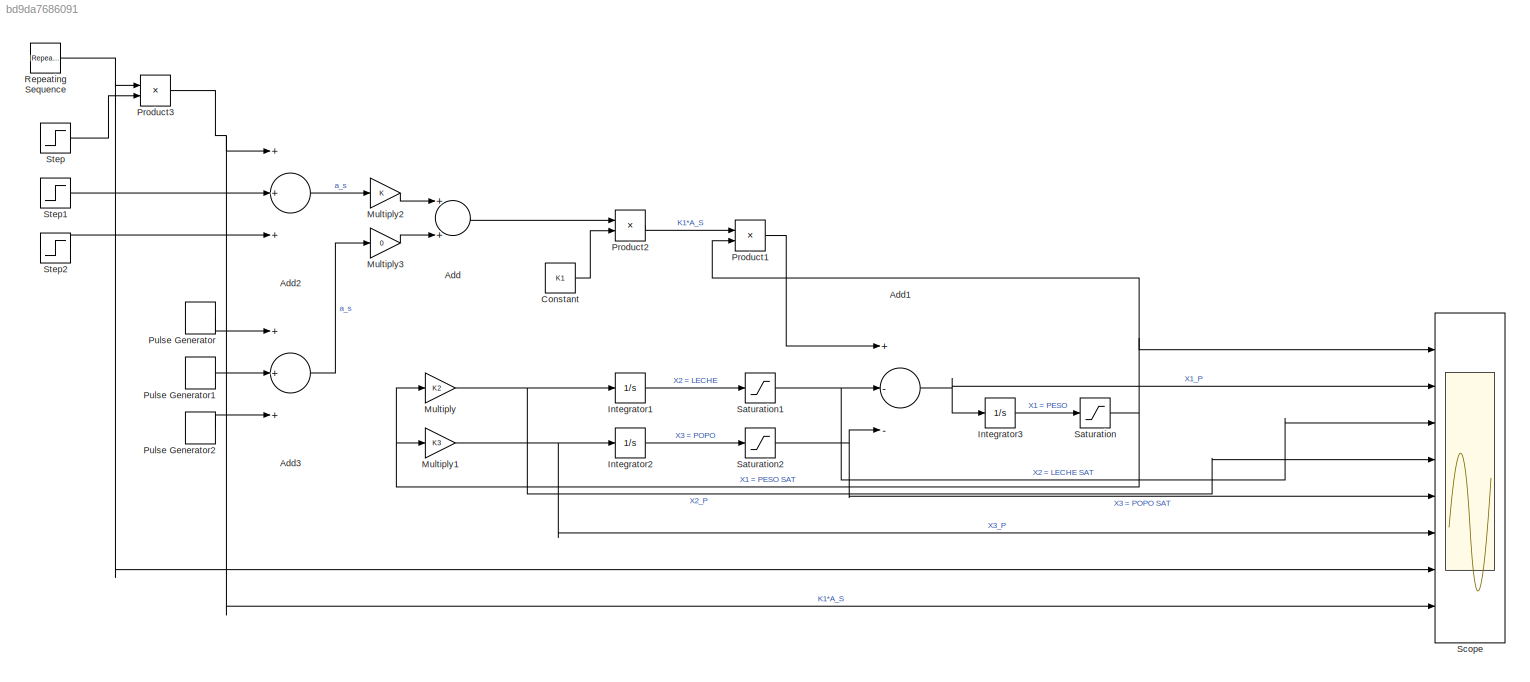
MODEL slx_bd9da7686091
KIND model
CONFIG AbsTol = auto
CONFIG EnableMultiTasking = off
CONFIG FixedStep = auto
CONFIG MaxStep = 0.001
CONFIG MinStep = auto
CONFIG RelTol = 1e-3
CONFIG SampleTimeConstraint = Unconstrained
CONFIG Solver = VariableStepAuto
CONFIG SolverName = VariableStepAuto
CONFIG StartTime = 0.0
CONFIG StopTime = 1000
BLOCK [Sum] Add
  InputSameDT = off
  OutDataTypeStr = Inherit: Inherit via internal rule
  Ports = [2, 1]
  SaturateOnIntegerOverflow = off
BLOCK [Sum] Add1
  InputSameDT = off
  Inputs = +--
  OutDataTypeStr = Inherit: Inherit via internal rule
  Ports = [3, 1]
  SaturateOnIntegerOverflow = off
BLOCK [Sum] Add2
  InputSameDT = off
  Inputs = +++
  OutDataTypeStr = Inherit: Inherit via internal rule
  Ports = [3, 1]
  SaturateOnIntegerOverflow = off
BLOCK [Sum] Add3
  InputSameDT = off
  Inputs = +++
  OutDataTypeStr = Inherit: Inherit via internal rule
  Ports = [3, 1]
  SaturateOnIntegerOverflow = off
BLOCK [Constant] Constant
  Value = K1
BLOCK [Integrator] Integrator1
  InitialCondition = 19
  Ports = [1, 1]
BLOCK [Integrator] Integrator2
  InitialCondition = 25.75
  Ports = [1, 1]
BLOCK [Integrator] Integrator3
  InitialCondition = 515
  Ports = [1, 1]
BLOCK [Gain] Multiply
  Gain = K2
  OutDataTypeStr = Inherit: Inherit via internal rule
  ParamDataTypeStr = Inherit: Inherit via internal rule
  SaturateOnIntegerOverflow = off
BLOCK [Gain] Multiply1
  Gain = K3
  OutDataTypeStr = Inherit: Inherit via internal rule
  ParamDataTypeStr = Inherit: Inherit via internal rule
  SaturateOnIntegerOverflow = off
BLOCK [Gain] Multiply2
  OutDataTypeStr = Inherit: Inherit via internal rule
  ParamDataTypeStr = Inherit: Inherit via internal rule
  SaturateOnIntegerOverflow = off
BLOCK [Gain] Multiply3
  Gain = 0
  OutDataTypeStr = Inherit: Inherit via internal rule
  ParamDataTypeStr = Inherit: Inherit via internal rule
  SaturateOnIntegerOverflow = off
BLOCK [Product] Product1
  InputSameDT = off
  OutDataTypeStr = Inherit: Inherit via internal rule
  Ports = [2, 1]
  RndMeth = Floor
  SaturateOnIntegerOverflow = off
BLOCK [Product] Product2
  InputSameDT = off
  OutDataTypeStr = Inherit: Inherit via internal rule
  Ports = [2, 1]
  RndMeth = Floor
  SaturateOnIntegerOverflow = off
BLOCK [Product] Product3
  InputSameDT = off
  OutDataTypeStr = Inherit: Inherit via internal rule
  Ports = [2, 1]
  RndMeth = Floor
  SaturateOnIntegerOverflow = off
BLOCK [DiscretePulseGenerator] Pulse Generator
  Amplitude = 0.2
  Period = 50
  Ports = [0, 1]
  PulseType = Time based
  PulseWidth = 25
BLOCK [DiscretePulseGenerator] Pulse Generator1
  Amplitude = 0.04
  Period = 50
  Ports = [0, 1]
  PulseType = Time based
  PulseWidth = 25
BLOCK [DiscretePulseGenerator] Pulse Generator2
  Amplitude = 0.1
  Period = 50
  Ports = [0, 1]
  PulseType = Time based
  PulseWidth = 25
BLOCK [Reference] Repeating Sequence  REF=simulink/Sources/Repeating
Sequence
  Ports = [0, 1]
  SourceBlock = simulink/Sources/Repeating\nSequence
  SourceProductBaseCode = SL
  SourceProductName = Simulink
  SourceType = Repeating table
BLOCK [Saturate] Saturation
  InputPortMap = u0
  LowerLimit = 470
  Ports = [1, 1]
  UpperLimit = 630
BLOCK [Saturate] Saturation1
  InputPortMap = u0
  LowerLimit = 5
  Ports = [1, 1]
  UpperLimit = 40
BLOCK [Saturate] Saturation2
  InputPortMap = u0
  LowerLimit = 5
  Ports = [1, 1]
  UpperLimit = 35
BLOCK [Scope] Scope
  Floating = off
  NumInputPorts = 8
  Ports = [8]
  ScopeSpecificationString = Simulink.scopes.TimeScopeBlockCfg('CurrentConfiguration', extmgr.ConfigurationSet(extmgr.Configuration('Core','General UI',true),extmgr.Configuration('Core','Source UI',true),extmgr.Configuration('Sources','WiredSimulink',true),extmgr.Configuration('Visuals','Time Domain',true,'SerializedDisplays',{struct('MinYLimReal','464.375','MaxYLimReal','520.625','YLabelReal','','MinYLimMag','464.375','MaxYL...<+6299ch>
BLOCK [Step] Step
  After = 0.2
  Before = 0.2
  SampleTime = 0
  Time = 0
BLOCK [Step] Step1
  After = 0
  Before = 0.04
  SampleTime = 0
  Time = 0
BLOCK [Step] Step2
  After = 0
  Before = 0.1
  SampleTime = 0
  Time = 0
NET Add1:1 -> Integrator3:1, Scope:2
LINE Add2:1 -> Multiply2:1
LINE Add3:1 -> Multiply3:1
LINE Add:1 -> Product2:1
LINE Constant:1 -> Product2:2
LINE Integrator1:1 -> Saturation1:1
LINE Integrator2:1 -> Saturation2:1
LINE Integrator3:1 -> Saturation:1
NET Multiply1:1 -> Integrator2:1, Scope:6
LINE Multiply2:1 -> Add:1
LINE Multiply3:1 -> Add:2
NET Multiply:1 -> Integrator1:1, Scope:4
LINE Product1:1 -> Add1:1
LINE Product2:1 -> Product1:1
NET Product3:1 -> Add2:1, Scope:8
LINE Pulse Generator1:1 -> Add3:2
LINE Pulse Generator2:1 -> Add3:3
LINE Pulse Generator:1 -> Add3:1
NET Repeating Sequence:1 -> Product3:1, Scope:7
NET Saturation1:1 -> Add1:2, Scope:3
NET Saturation2:1 -> Add1:3, Scope:5
NET Saturation:1 -> Multiply1:1, Multiply:1, Product1:2, Scope:1
LINE Step1:1 -> Add2:2
LINE Step2:1 -> Add2:3
LINE Step:1 -> Product3:2
note: NET lines group one-source signal fan-out (src -> all destinations, sorted); 1:1 wires keep LINE
